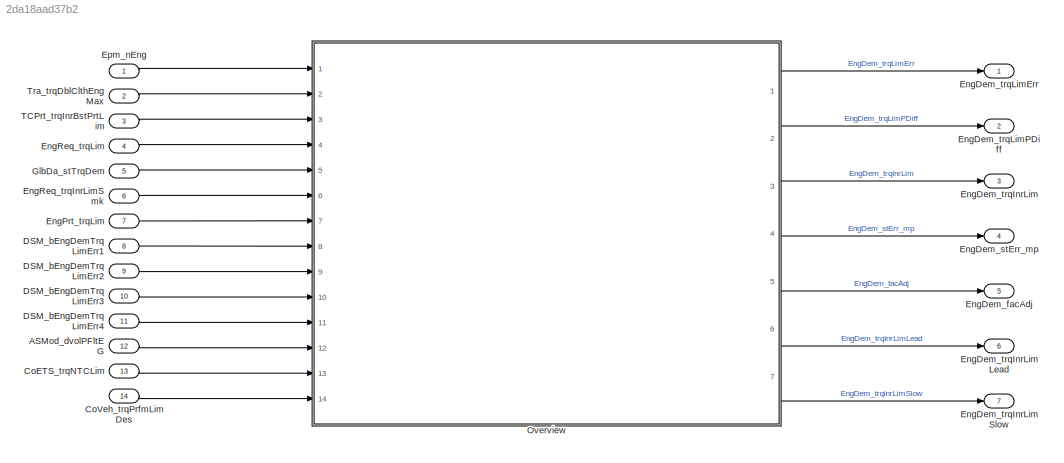
MODEL slx_2da18aad37b2
KIND model
CONFIG AbsTol = auto
CONFIG EnableMultiTasking = off
CONFIG FixedStep = 0.001
CONFIG MaxStep = auto
CONFIG MinStep = auto
CONFIG RelTol = 1e-3
CONFIG SampleTimeConstraint = Unconstrained
CONFIG Solver = FixedStepDiscrete
CONFIG SolverName = FixedStepDiscrete
CONFIG StartTime = 0.0
CONFIG StopTime = Inf
WORKSPACE source: MAT-file member
WORKSPACE EngDem_TrqLimCoord_DT = 10
BLOCK [Inport] ASMod_dvolPFltEG
  Description = Calculated exhaust-gas volume flow in the particulate filter
  IconDisplay = Port number
  OutDataTypeStr = vFlow_m3ph
  OutMax = 100
  OutMin = 0
  Port = 12
  PortDimensions = [1 1]
  Unit = m^3/h
BLOCK [Inport] CoETS_trqNTCLim
  Description = NTC torque limitation (0 in braking, ramped to max in braked to fired
  IconDisplay = Port number
  OutDataTypeStr = Torq
  OutMax = 1000
  OutMin = 0
  Port = 13
  PortDimensions = [1 1]
  Unit = Nm
BLOCK [Inport] CoVeh_trqPrfmLimDes
  Description = Torque limitation from performence limiter
  IconDisplay = Port number
  OutDataTypeStr = Torq
  OutMax = 3276.7
  OutMin = -3000
  Port = 14
  PortDimensions = [1 1]
  Unit = Nm
BLOCK [Inport] DSM_bEngDemTrqLimErr1
  Description = FId for Engine demand Torque Limitation due to System error
  IconDisplay = Port number
  OutDataTypeStr = boolean
  OutMax = 1
  OutMin = 0
  Port = 8
  PortDimensions = [1 1]
BLOCK [Inport] DSM_bEngDemTrqLimErr2
  Description = FId for Engine demand Torque Limitation due to System error
  IconDisplay = Port number
  OutDataTypeStr = boolean
  OutMax = 1
  OutMin = 0
  Port = 9
  PortDimensions = [1 1]
BLOCK [Inport] DSM_bEngDemTrqLimErr3
  Description = FId for Engine demand Torque Limitation due to System error
  IconDisplay = Port number
  OutDataTypeStr = boolean
  OutMax = 1
  OutMin = 0
  Port = 10
  PortDimensions = [1 1]
BLOCK [Inport] DSM_bEngDemTrqLimErr4
  Description = FId for Engine demand Torque Limitation due to System error
  IconDisplay = Port number
  OutDataTypeStr = boolean
  OutMax = 1
  OutMin = 0
  Port = 11
  PortDimensions = [1 1]
BLOCK [Outport] EngDem_facAdj
  IconDisplay = Port number
  Port = 5
BLOCK [Outport] EngDem_stErr_mp
  IconDisplay = Port number
  Port = 4
BLOCK [Outport] EngDem_trqInrLim
  IconDisplay = Port number
  Port = 3
BLOCK [Outport] EngDem_trqInrLimLead
  IconDisplay = Port number
  Port = 6
BLOCK [Outport] EngDem_trqInrLimSlow
  IconDisplay = Port number
  Port = 7
BLOCK [Outport] EngDem_trqLimErr
  IconDisplay = Port number
BLOCK [Outport] EngDem_trqLimPDiff
  IconDisplay = Port number
  Port = 2
BLOCK [Inport] EngPrt_trqLim
  Description = Limitation torque for engine mechanic protection by torque limitation (as inner engine torque)
  IconDisplay = Port number
  OutDataTypeStr = Torq
  OutMax = 3276.7
  OutMin = -3276.8
  Port = 7
  PortDimensions = [1 1]
  Unit = Nm
BLOCK [Inport] EngReq_trqInrLimSmk
  Description = Limiting torque smoke limit
  IconDisplay = Port number
  OutDataTypeStr = Torq
  OutMax = 3276.7
  OutMin = -3276.8
  Port = 6
  PortDimensions = [1 1]
  Unit = Nm
BLOCK [Inport] EngReq_trqLim
  Description = Resulting limiting torque from engine specifications
  IconDisplay = Port number
  OutDataTypeStr = Torq
  OutMax = 3276.7
  OutMin = -3276.8
  Port = 4
  PortDimensions = [1 1]
  Unit = Nm
BLOCK [Inport] Epm_nEng
  Description = Engine speed
  IconDisplay = Port number
  OutDataTypeStr = ERPM
  OutMax = 6000
  OutMin = 0
  PortDimensions = [1 1]
  Unit = rpm
BLOCK [Inport] GlbDa_stTrqDem
  Description = contains highest prior function with torque demand
  IconDisplay = Port number
  OutDataTypeStr = State4
  OutMax = 4294967295
  OutMin = 0
  Port = 5
  PortDimensions = [1 1]
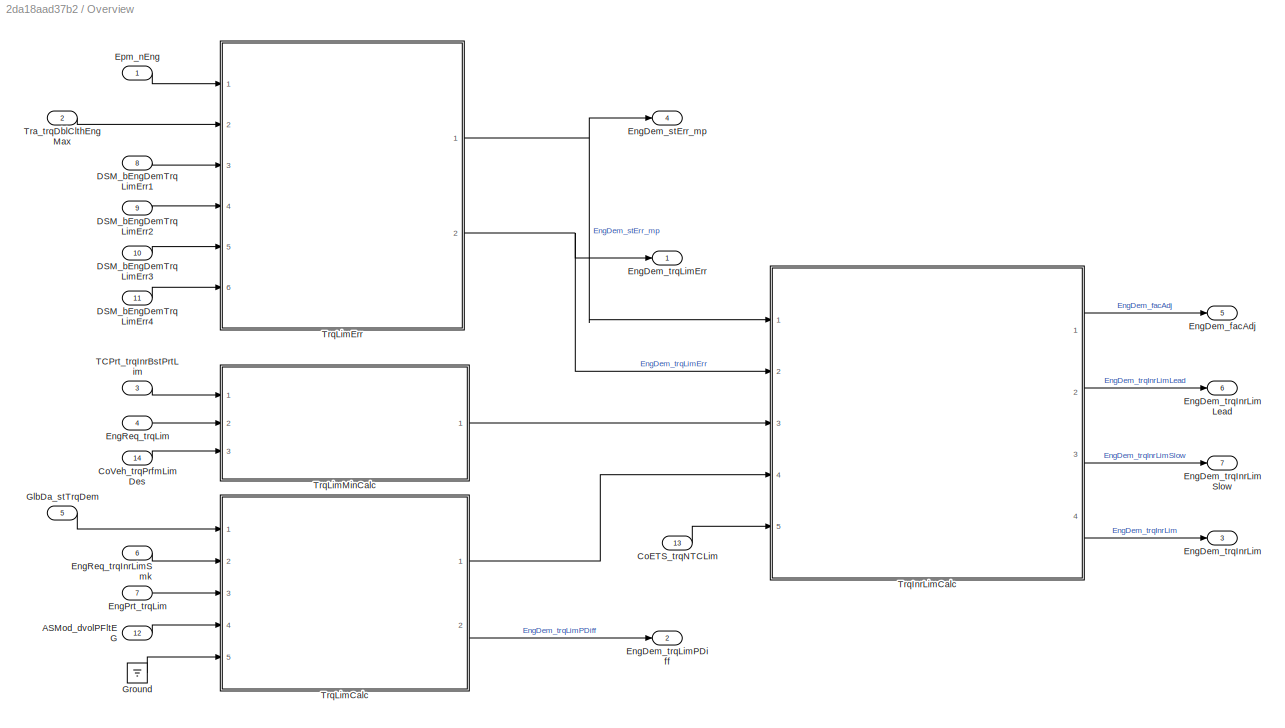
BLOCK [SubSystem] Overview
  Ports = [14, 7]
  RequestExecContextInheritance = off
BLOCK [Inport] Overview/ASMod_dvolPFltEG
  Description = Calculated exhaust-gas volume flow in the particulate filter
  IconDisplay = Port number
  OutMax = 100
  OutMin = 0
  Port = 12
  Tag = m^3/h
BLOCK [Inport] Overview/CoETS_trqNTCLim
  Description = NTC torque limitation (0 in braking, ramped to max in braked to fired
  IconDisplay = Port number
  OutMax = 1000
  OutMin = 0
  Port = 13
  Tag = Nm
BLOCK [Inport] Overview/CoVeh_trqPrfmLimDes
  Description = Torque limitation from performence limiter
  IconDisplay = Port number
  OutMax = 3276.7
  OutMin = -3000
  Port = 14
  Tag = Nm
BLOCK [Inport] Overview/DSM_bEngDemTrqLimErr1
  Description = FId for Engine demand Torque Limitation due to System error
  IconDisplay = Port number
  OutDataTypeStr = boolean
  OutMax = 1
  OutMin = 0
  Port = 8
BLOCK [Inport] Overview/DSM_bEngDemTrqLimErr2
  Description = FId for Engine demand Torque Limitation due to System error
  IconDisplay = Port number
  OutDataTypeStr = boolean
  OutMax = 1
  OutMin = 0
  Port = 9
BLOCK [Inport] Overview/DSM_bEngDemTrqLimErr3
  Description = FId for Engine demand Torque Limitation due to System error
  IconDisplay = Port number
  OutDataTypeStr = boolean
  OutMax = 1
  OutMin = 0
  Port = 10
BLOCK [Inport] Overview/DSM_bEngDemTrqLimErr4
  Description = FId for Engine demand Torque Limitation due to System error
  IconDisplay = Port number
  OutDataTypeStr = boolean
  OutMax = 1
  OutMin = 0
  Port = 11
BLOCK [Outport] Overview/EngDem_facAdj
  Description = EEPROM adjustment value for correction of the limiting torque
  IconDisplay = Port number
  OutMax = 10
  OutMin = -10
  Port = 5
BLOCK [Outport] Overview/EngDem_stErr_mp
  Description = Status of the limitation FIDs
  IconDisplay = Port number
  OutDataTypeStr = boolean
  OutMax = 1
  OutMin = 0
  Port = 4
BLOCK [Outport] Overview/EngDem_trqInrLim
  Description = Resulting limiting torque (inner engine torque)
  IconDisplay = Port number
  OutMax = 3276.7
  OutMin = -3276.8
  Port = 3
  Tag = Nm
BLOCK [Outport] Overview/EngDem_trqInrLimLead
  Description = inner engine limted lead torque
  IconDisplay = Port number
  OutMax = 3276.7
  OutMin = -3276.8
  Port = 6
  Tag = Nm
BLOCK [Outport] Overview/EngDem_trqInrLimSlow
  Description = inner engine limted torque for Slow Path
  IconDisplay = Port number
  OutMax = 3276.7
  OutMin = -3276.8
  Port = 7
  Tag = Nm
BLOCK [Outport] Overview/EngDem_trqLimErr
  Description = Substitute limiting torque in the event of an error
  IconDisplay = Port number
  OutMax = 3276.7
  OutMin = -3276.8
  Tag = Nm
BLOCK [Outport] Overview/EngDem_trqLimPDiff
  Description = Limiting torque due to exhaust gas back-pressure
  IconDisplay = Port number
  OutMax = 3276.7
  OutMin = -3276.8
  Port = 2
  Tag = Nm
BLOCK [Inport] Overview/EngPrt_trqLim
  Description = Limitation torque for engine mechanic protection by torque limitation (as inner engine torque)
  IconDisplay = Port number
  OutMax = 3276.7
  OutMin = -3276.8
  Port = 7
  Tag = Nm
BLOCK [Inport] Overview/EngReq_trqInrLimSmk
  Description = Limiting torque smoke limit
  IconDisplay = Port number
  OutMax = 3276.7
  OutMin = -3276.8
  Port = 6
  Tag = Nm
BLOCK [Inport] Overview/EngReq_trqLim
  Description = Resulting limiting torque from engine specifications
  IconDisplay = Port number
  OutMax = 3276.7
  OutMin = -3276.8
  Port = 4
  Tag = Nm
BLOCK [Inport] Overview/Epm_nEng
  Description = Engine speed
  IconDisplay = Port number
  OutMax = 6000
  OutMin = 0
  Tag = rpm
BLOCK [Inport] Overview/GlbDa_stTrqDem
  Description = contains highest prior function with torque demand
  IconDisplay = Port number
  OutMax = 4294967295
  OutMin = 0
  Port = 5
BLOCK [Ground] Overview/Ground
BLOCK [Inport] Overview/TCPrt_trqInrBstPrtLim
  Description = Torque limitation from VGT Nm
  IconDisplay = Port number
  OutMax = 3276.7
  OutMin = -3276.8
  Port = 3
  Tag = Nm
BLOCK [Inport] Overview/Tra_trqDblClthEngMax
  Description = Application parameter for minimum torque of systemdegratation Nm
  IconDisplay = Port number
  OutMax = 3000
  OutMin = -3000
  Port = 2
  Tag = Nm
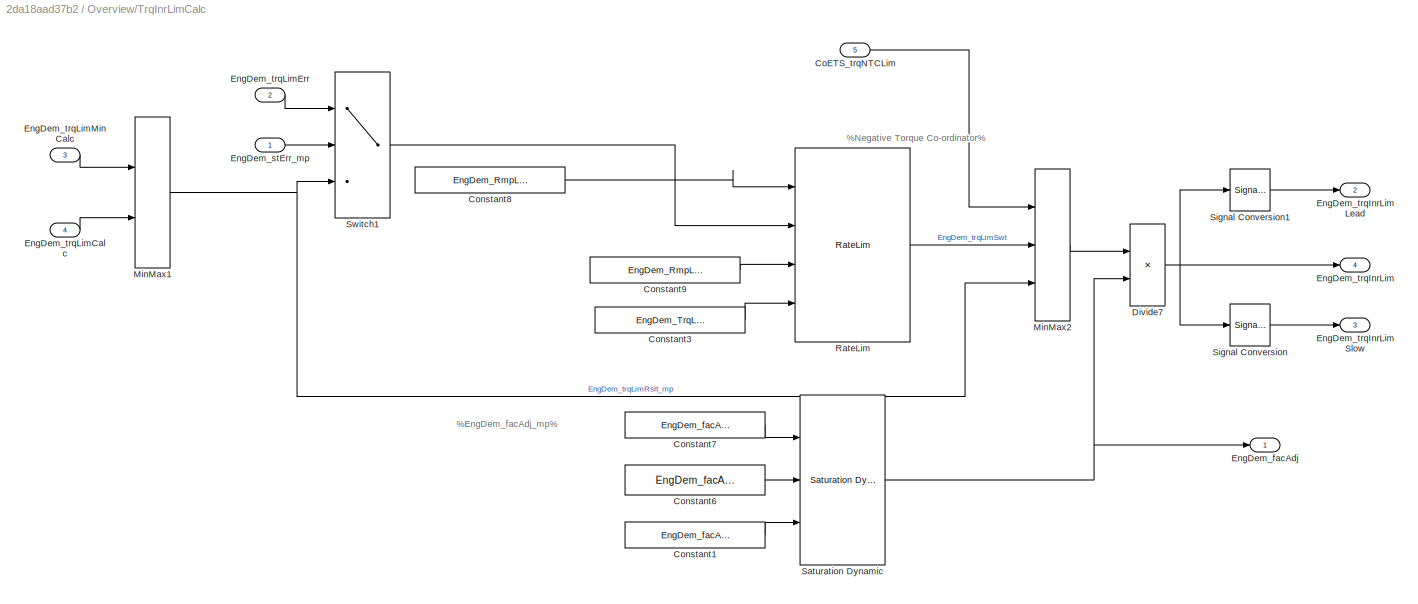
BLOCK [SubSystem] Overview/TrqInrLimCalc
  Ports = [5, 4]
  RequestExecContextInheritance = off
BLOCK [Inport] Overview/TrqInrLimCalc/CoETS_trqNTCLim
  Description = NTC torque limitation (0 in braking, ramped to max in braked to fired
  IconDisplay = Port number
  Port = 5
  Tag = Nm
BLOCK [Constant] Overview/TrqInrLimCalc/Constant1
  Value = EngDem_facAdj_C
BLOCK [Constant] Overview/TrqInrLimCalc/Constant3
  OutDataTypeStr = Inherit: Inherit via back propagation
  Value = EngDem_TrqLimCoord_DT
BLOCK [Constant] Overview/TrqInrLimCalc/Constant6
  Value = EngDem_facAdjMin_C
BLOCK [Constant] Overview/TrqInrLimCalc/Constant7
  Value = EngDem_facAdjMax_C
BLOCK [Constant] Overview/TrqInrLimCalc/Constant8
  Value = EngDem_RmpLimErrPos_C
BLOCK [Constant] Overview/TrqInrLimCalc/Constant9
  Value = EngDem_RmpLimErrNeg_C
BLOCK [Product] Overview/TrqInrLimCalc/Divide7
  InputSameDT = off
  Inputs = **
  OutDataTypeStr = Inherit: Inherit via back propagation
  Ports = [2, 1]
  RndMeth = Floor
  SaturateOnIntegerOverflow = off
BLOCK [Outport] Overview/TrqInrLimCalc/EngDem_facAdj
  IconDisplay = Port number
BLOCK [Inport] Overview/TrqInrLimCalc/EngDem_stErr_mp
  IconDisplay = Port number
BLOCK [Outport] Overview/TrqInrLimCalc/EngDem_trqInrLim
  IconDisplay = Port number
  Port = 4
BLOCK [Outport] Overview/TrqInrLimCalc/EngDem_trqInrLimLead
  IconDisplay = Port number
  Port = 2
BLOCK [Outport] Overview/TrqInrLimCalc/EngDem_trqInrLimSlow
  IconDisplay = Port number
  Port = 3
BLOCK [Inport] Overview/TrqInrLimCalc/EngDem_trqLimCalc
  IconDisplay = Port number
  Port = 4
BLOCK [Inport] Overview/TrqInrLimCalc/EngDem_trqLimErr
  IconDisplay = Port number
  Port = 2
BLOCK [Inport] Overview/TrqInrLimCalc/EngDem_trqLimMinCalc
  IconDisplay = Port number
  Port = 3
BLOCK [MinMax] Overview/TrqInrLimCalc/MinMax1
  Inputs = 2
  Ports = [2, 1]
  SaturateOnIntegerOverflow = off
BLOCK [MinMax] Overview/TrqInrLimCalc/MinMax2
  Inputs = 3
  Ports = [3, 1]
  SaturateOnIntegerOverflow = off
BLOCK [Reference] Overview/TrqInrLimCalc/RateLim  REF=sllib/RateLim  (lib defined in slx_2b0aa6d284ff)
  Ports = [4, 1]
  SourceBlock = sllib/RateLim
  SourceProductName = sllib
  SourceType = RateLim
BLOCK [Reference] Overview/TrqInrLimCalc/Saturation Dynamic  REF=simulink/Discontinuities/Saturation
Dynamic
  Ports = [3, 1]
  SourceBlock = simulink/Discontinuities/Saturation\nDynamic
  SourceProductBaseCode = SL
  SourceProductName = Simulink
  SourceType = Saturation Dynamic
BLOCK [SignalConversion] Overview/TrqInrLimCalc/Signal Conversion
  OverrideOpt = off
BLOCK [SignalConversion] Overview/TrqInrLimCalc/Signal Conversion1
  OverrideOpt = off
BLOCK [Switch] Overview/TrqInrLimCalc/Switch1
  Criteria = u2 ~= 0
  SaturateOnIntegerOverflow = off
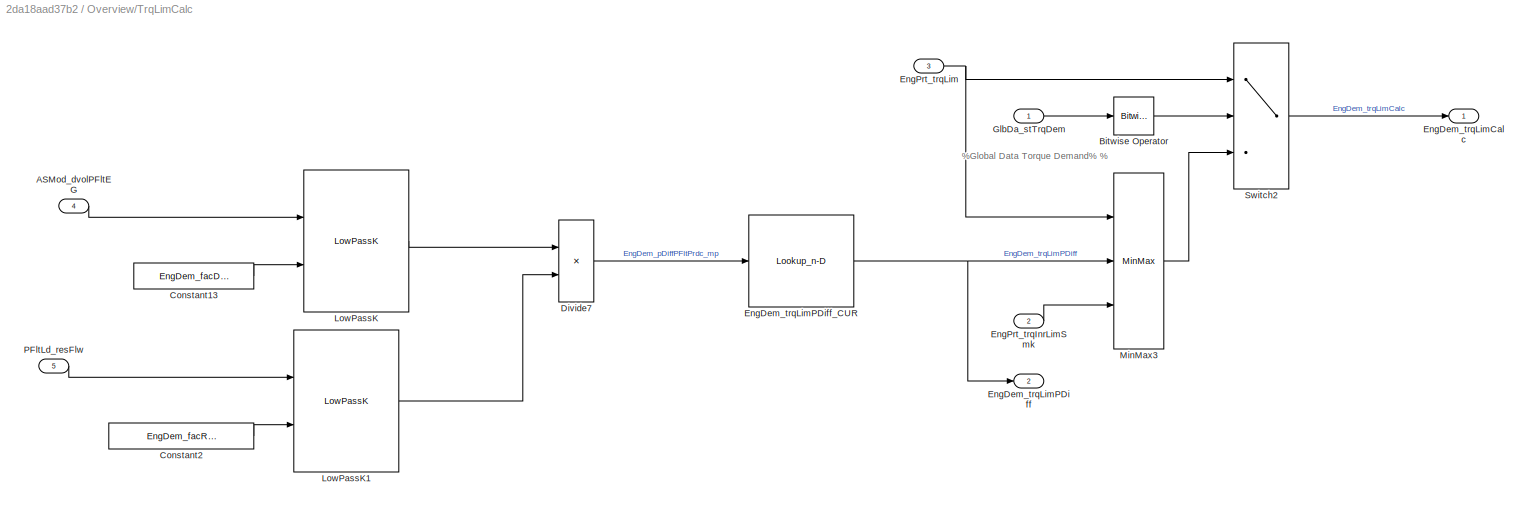
BLOCK [SubSystem] Overview/TrqLimCalc
  Ports = [5, 2]
  RTWFcnName = TrqLimCalc_Co
  RTWFcnNameOpts = User specified
  RTWFileName = TrqLimCalc
  RTWFileNameOpts = User specified
  RTWSystemCode = Nonreusable function
  RequestExecContextInheritance = off
BLOCK [Inport] Overview/TrqLimCalc/ASMod_dvolPFltEG
  Description = Calculated exhaust-gas volume flow in the particulate filter
  IconDisplay = Port number
  Port = 4
  Tag = m^2/h
BLOCK [Reference] Overview/TrqLimCalc/Bitwise Operator  REF=simulink/Logic and Bit
Operations/Bitwise
Operator
  Ports = [1, 1]
  SourceBlock = simulink/Logic and Bit\nOperations/Bitwise\nOperator
  SourceProductBaseCode = SL
  SourceProductName = Simulink
  SourceType = Bitwise Operator
BLOCK [Constant] Overview/TrqLimCalc/Constant13
  Value = EngDem_facDvolPT1_C
BLOCK [Constant] Overview/TrqLimCalc/Constant2
  Value = EngDem_facResFlowPT1_C
BLOCK [Product] Overview/TrqLimCalc/Divide7
  InputSameDT = off
  Inputs = **
  OutDataTypeStr = Inherit: Inherit via back propagation
  Ports = [2, 1]
  RndMeth = Floor
  SaturateOnIntegerOverflow = off
BLOCK [Outport] Overview/TrqLimCalc/EngDem_trqLimCalc
  IconDisplay = Port number
BLOCK [Outport] Overview/TrqLimCalc/EngDem_trqLimPDiff
  IconDisplay = Port number
  Port = 2
BLOCK [Lookup_n-D] Overview/TrqLimCalc/EngDem_trqLimPDiff_CUR
  BeginIndexSearchUsingPreviousIndexResult = on
  BreakpointsForDimension1 = EngDem_trqLimPDiff_CURX
  BreakpointsForDimension2 = CEngDsT_tTransf_CURX
  DialogController = Simulink.DDGSource
  ExtrapMethod = Clip
  IndexSearchMethod = Linear search
  InputSameDT = off
  InternalRulePriority = Speed
  NumberOfTableDimensions = 1
  OutDataTypeStr = Inherit: Inherit via back propagation
  Ports = [1, 1]
  SaturateOnIntegerOverflow = on
  Table = EngDem_trqLimPDiff_CUR
  UseLastTableValue = on
BLOCK [Inport] Overview/TrqLimCalc/EngPrt_trqInrLimSmk
  IconDisplay = Port number
  Port = 2
BLOCK [Inport] Overview/TrqLimCalc/EngPrt_trqLim
  IconDisplay = Port number
  Port = 3
BLOCK [Inport] Overview/TrqLimCalc/GlbDa_stTrqDem
  IconDisplay = Port number
BLOCK [Reference] Overview/TrqLimCalc/LowPassK  REF=sllib/LowPassK  (lib defined in slx_2b0aa6d284ff)
  Ports = [2, 1]
  SourceBlock = sllib/LowPassK
  SourceProductName = sllib
  SourceType = LowPassK
BLOCK [Reference] Overview/TrqLimCalc/LowPassK1  REF=sllib/LowPassK  (lib defined in slx_2b0aa6d284ff)
  Ports = [2, 1]
  SourceBlock = sllib/LowPassK
  SourceProductName = sllib
  SourceType = LowPassK
BLOCK [MinMax] Overview/TrqLimCalc/MinMax3
  Inputs = 3
  Ports = [3, 1]
  SaturateOnIntegerOverflow = off
BLOCK [Inport] Overview/TrqLimCalc/PFltLd_resFlw
  Description = Flow resistance of the particulate filter
  IconDisplay = Port number
  Port = 5
  Tag = kPa/(m^2/h)
BLOCK [Switch] Overview/TrqLimCalc/Switch2
  Criteria = u2 ~= 0
  SaturateOnIntegerOverflow = off
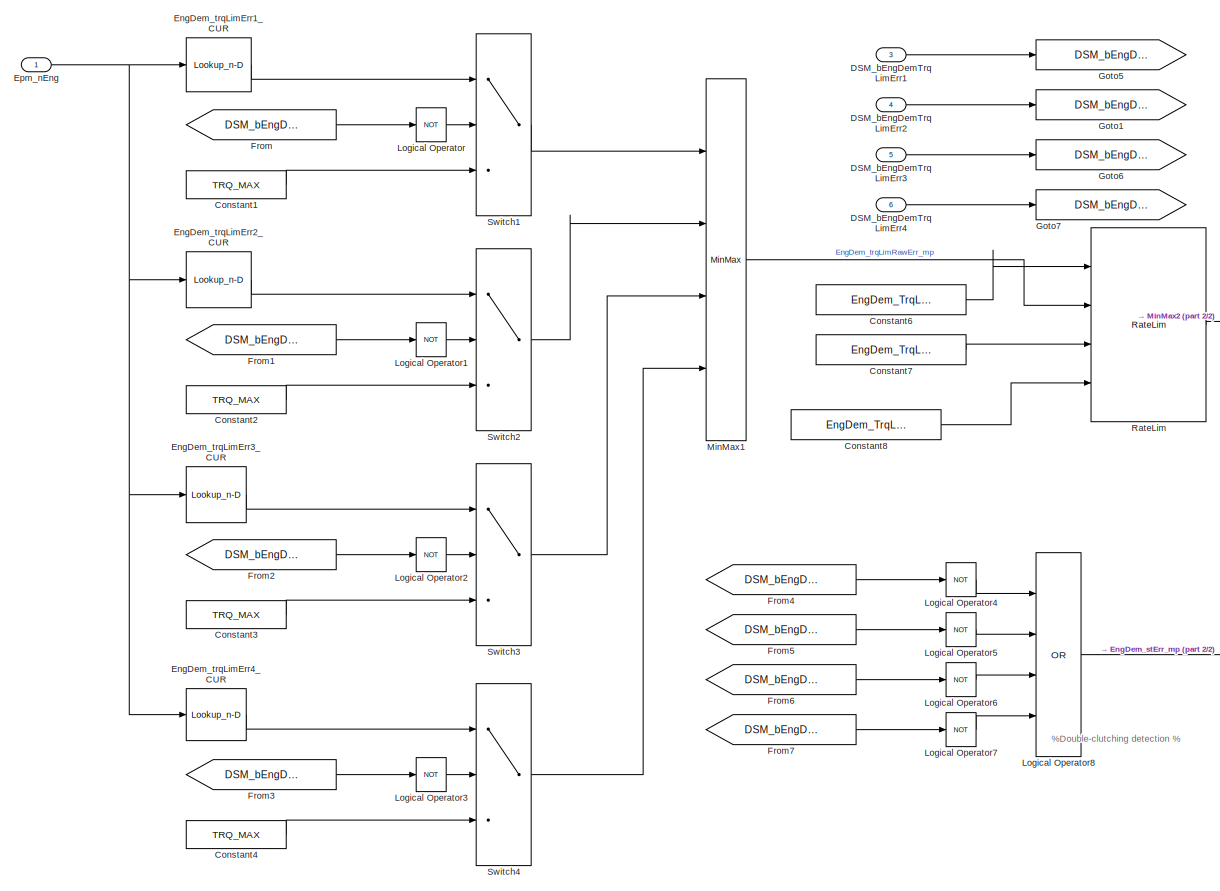
[diagram: Overview/TrqLimErr - part 1/2, most of the canvas]
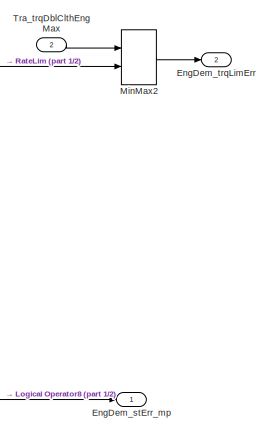
[diagram: Overview/TrqLimErr - part 2/2, middle right region]
BLOCK [SubSystem] Overview/TrqLimErr
  Ports = [6, 2]
  RTWFcnName = TrqLimErr_Co
  RTWFcnNameOpts = User specified
  RTWFileName = TrqLimErr
  RTWFileNameOpts = User specified
  RTWSystemCode = Nonreusable function
  RequestExecContextInheritance = off
BLOCK [Constant] Overview/TrqLimErr/Constant1
  Value = TRQ_MAX
BLOCK [Constant] Overview/TrqLimErr/Constant2
  Value = TRQ_MAX
BLOCK [Constant] Overview/TrqLimErr/Constant3
  Value = TRQ_MAX
BLOCK [Constant] Overview/TrqLimErr/Constant4
  Value = TRQ_MAX
BLOCK [Constant] Overview/TrqLimErr/Constant6
  Value = EngDem_TrqLimErrRmpPos_C
BLOCK [Constant] Overview/TrqLimErr/Constant7
  Value = EngDem_TrqLimErrRmpNeg_C
BLOCK [Constant] Overview/TrqLimErr/Constant8
  OutDataTypeStr = Inherit: Inherit via back propagation
  Value = EngDem_TrqLimCoord_DT
BLOCK [Inport] Overview/TrqLimErr/DSM_bEngDemTrqLimErr1
  Description = status of FId_EngDemTrqLimErr1
  IconDisplay = Port number
  OutDataTypeStr = boolean
  OutMax = 1
  OutMin = 0
  Port = 3
BLOCK [Inport] Overview/TrqLimErr/DSM_bEngDemTrqLimErr2
  Description = status of FId_EngDemTrqLimErr2
  IconDisplay = Port number
  OutDataTypeStr = boolean
  OutMax = 1
  OutMin = 0
  Port = 4
BLOCK [Inport] Overview/TrqLimErr/DSM_bEngDemTrqLimErr3
  Description = status of FId_EngDemTrqLimErr3
  IconDisplay = Port number
  OutDataTypeStr = boolean
  OutMax = 1
  OutMin = 0
  Port = 5
BLOCK [Inport] Overview/TrqLimErr/DSM_bEngDemTrqLimErr4
  Description = status of FId_EngDemTrqLimErr4
  IconDisplay = Port number
  OutDataTypeStr = boolean
  OutMax = 1
  OutMin = 0
  Port = 6
BLOCK [Outport] Overview/TrqLimErr/EngDem_stErr_mp
  IconDisplay = Port number
BLOCK [Outport] Overview/TrqLimErr/EngDem_trqLimErr
  IconDisplay = Port number
  Port = 2
BLOCK [Lookup_n-D] Overview/TrqLimErr/EngDem_trqLimErr1_CUR
  BeginIndexSearchUsingPreviousIndexResult = on
  BreakpointsForDimension1 = EngDem_trqLimErr1_CURX
  BreakpointsForDimension2 = CEngDsT_tTransf_CURX
  DialogController = Simulink.DDGSource
  ExtrapMethod = Clip
  IndexSearchMethod = Linear search
  InputSameDT = off
  InternalRulePriority = Speed
  NumberOfTableDimensions = 1
  OutDataTypeStr = Inherit: Inherit via back propagation
  Ports = [1, 1]
  SaturateOnIntegerOverflow = on
  Table = EngDem_trqLimErr1_CUR
  UseLastTableValue = on
BLOCK [Lookup_n-D] Overview/TrqLimErr/EngDem_trqLimErr2_CUR
  BeginIndexSearchUsingPreviousIndexResult = on
  BreakpointsForDimension1 = EngDem_trqLimErr2_CURX
  BreakpointsForDimension2 = CEngDsT_tTransf_CURX
  DialogController = Simulink.DDGSource
  ExtrapMethod = Clip
  IndexSearchMethod = Linear search
  InputSameDT = off
  InternalRulePriority = Speed
  NumberOfTableDimensions = 1
  OutDataTypeStr = Inherit: Inherit via back propagation
  Ports = [1, 1]
  SaturateOnIntegerOverflow = on
  Table = EngDem_trqLimErr2_CUR
  UseLastTableValue = on
BLOCK [Lookup_n-D] Overview/TrqLimErr/EngDem_trqLimErr3_CUR
  BeginIndexSearchUsingPreviousIndexResult = on
  BreakpointsForDimension1 = EngDem_trqLimErr3_CURX
  BreakpointsForDimension2 = CEngDsT_tTransf_CURX
  DialogController = Simulink.DDGSource
  ExtrapMethod = Clip
  IndexSearchMethod = Linear search
  InputSameDT = off
  InternalRulePriority = Speed
  NumberOfTableDimensions = 1
  OutDataTypeStr = Inherit: Inherit via back propagation
  Ports = [1, 1]
  SaturateOnIntegerOverflow = on
  Table = EngDem_trqLimErr3_CUR
  UseLastTableValue = on
BLOCK [Lookup_n-D] Overview/TrqLimErr/EngDem_trqLimErr4_CUR
  BeginIndexSearchUsingPreviousIndexResult = on
  BreakpointsForDimension1 = EngDem_trqLimErr4_CURX
  BreakpointsForDimension2 = CEngDsT_tTransf_CURX
  DialogController = Simulink.DDGSource
  ExtrapMethod = Clip
  IndexSearchMethod = Linear search
  InputSameDT = off
  InternalRulePriority = Speed
  NumberOfTableDimensions = 1
  OutDataTypeStr = Inherit: Inherit via back propagation
  Ports = [1, 1]
  SaturateOnIntegerOverflow = on
  Table = EngDem_trqLimErr4_CUR
  UseLastTableValue = on
BLOCK [Inport] Overview/TrqLimErr/Epm_nEng
  Description = Engine speed
  IconDisplay = Port number
BLOCK [From] Overview/TrqLimErr/From
  GotoTag = DSM_bEngDemTrqLimErr1
BLOCK [From] Overview/TrqLimErr/From1
  GotoTag = DSM_bEngDemTrqLimErr2
BLOCK [From] Overview/TrqLimErr/From2
  GotoTag = DSM_bEngDemTrqLimErr3
BLOCK [From] Overview/TrqLimErr/From3
  GotoTag = DSM_bEngDemTrqLimErr4
BLOCK [From] Overview/TrqLimErr/From4
  GotoTag = DSM_bEngDemTrqLimErr1
BLOCK [From] Overview/TrqLimErr/From5
  GotoTag = DSM_bEngDemTrqLimErr2
BLOCK [From] Overview/TrqLimErr/From6
  GotoTag = DSM_bEngDemTrqLimErr3
BLOCK [From] Overview/TrqLimErr/From7
  GotoTag = DSM_bEngDemTrqLimErr4
BLOCK [Goto] Overview/TrqLimErr/Goto1
  GotoTag = DSM_bEngDemTrqLimErr2
BLOCK [Goto] Overview/TrqLimErr/Goto5
  GotoTag = DSM_bEngDemTrqLimErr1
BLOCK [Goto] Overview/TrqLimErr/Goto6
  GotoTag = DSM_bEngDemTrqLimErr3
BLOCK [Goto] Overview/TrqLimErr/Goto7
  GotoTag = DSM_bEngDemTrqLimErr4
BLOCK [Logic] Overview/TrqLimErr/Logical Operator
  AllPortsSameDT = off
  Operator = NOT
  OutDataTypeStr = boolean
  Ports = [1, 1]
BLOCK [Logic] Overview/TrqLimErr/Logical Operator1
  AllPortsSameDT = off
  Operator = NOT
  OutDataTypeStr = boolean
  Ports = [1, 1]
BLOCK [Logic] Overview/TrqLimErr/Logical Operator2
  AllPortsSameDT = off
  Operator = NOT
  OutDataTypeStr = boolean
  Ports = [1, 1]
BLOCK [Logic] Overview/TrqLimErr/Logical Operator3
  AllPortsSameDT = off
  Operator = NOT
  OutDataTypeStr = boolean
  Ports = [1, 1]
BLOCK [Logic] Overview/TrqLimErr/Logical Operator4
  AllPortsSameDT = off
  Operator = NOT
  OutDataTypeStr = boolean
  Ports = [1, 1]
BLOCK [Logic] Overview/TrqLimErr/Logical Operator5
  AllPortsSameDT = off
  Operator = NOT
  OutDataTypeStr = boolean
  Ports = [1, 1]
BLOCK [Logic] Overview/TrqLimErr/Logical Operator6
  AllPortsSameDT = off
  Operator = NOT
  OutDataTypeStr = boolean
  Ports = [1, 1]
BLOCK [Logic] Overview/TrqLimErr/Logical Operator7
  AllPortsSameDT = off
  Operator = NOT
  OutDataTypeStr = boolean
  Ports = [1, 1]
BLOCK [Logic] Overview/TrqLimErr/Logical Operator8
  AllPortsSameDT = off
  Inputs = 4
  Operator = OR
  OutDataTypeStr = boolean
  Ports = [4, 1]
BLOCK [MinMax] Overview/TrqLimErr/MinMax1
  Inputs = 4
  Ports = [4, 1]
  SaturateOnIntegerOverflow = off
BLOCK [MinMax] Overview/TrqLimErr/MinMax2
  Function = max
  Inputs = 2
  Ports = [2, 1]
  SaturateOnIntegerOverflow = off
BLOCK [Reference] Overview/TrqLimErr/RateLim  REF=sllib/RateLim  (lib defined in slx_2b0aa6d284ff)
  Ports = [4, 1]
  SourceBlock = sllib/RateLim
  SourceProductName = sllib
  SourceType = RateLim
BLOCK [Switch] Overview/TrqLimErr/Switch1
  Criteria = u2 ~= 0
  SaturateOnIntegerOverflow = off
BLOCK [Switch] Overview/TrqLimErr/Switch2
  Criteria = u2 ~= 0
  SaturateOnIntegerOverflow = off
BLOCK [Switch] Overview/TrqLimErr/Switch3
  Criteria = u2 ~= 0
  SaturateOnIntegerOverflow = off
BLOCK [Switch] Overview/TrqLimErr/Switch4
  Criteria = u2 ~= 0
  SaturateOnIntegerOverflow = off
BLOCK [Inport] Overview/TrqLimErr/Tra_trqDblClthEngMax
  IconDisplay = Port number
  Port = 2
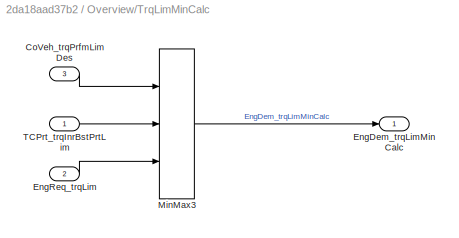
BLOCK [SubSystem] Overview/TrqLimMinCalc
  Ports = [3, 1]
  RTWFcnName = TrqLimMinCalc_Co
  RTWFcnNameOpts = User specified
  RTWFileName = TrqLimMinCalc
  RTWFileNameOpts = User specified
  RTWSystemCode = Nonreusable function
  RequestExecContextInheritance = off
BLOCK [Inport] Overview/TrqLimMinCalc/CoVeh_trqPrfmLimDes
  Description = Torque limitation from performence limiter
  IconDisplay = Port number
  Port = 3
  Tag = Nm
BLOCK [Outport] Overview/TrqLimMinCalc/EngDem_trqLimMinCalc
  IconDisplay = Port number
BLOCK [Inport] Overview/TrqLimMinCalc/EngReq_trqLim
  IconDisplay = Port number
  Port = 2
BLOCK [MinMax] Overview/TrqLimMinCalc/MinMax3
  Inputs = 3
  Ports = [3, 1]
  SaturateOnIntegerOverflow = off
BLOCK [Inport] Overview/TrqLimMinCalc/TCPrt_trqInrBstPrtLim
  IconDisplay = Port number
BLOCK [Inport] TCPrt_trqInrBstPrtLim
  Description = Torque limitation from VGT Nm
  IconDisplay = Port number
  OutDataTypeStr = Torq
  OutMax = 3276.7
  OutMin = -3276.8
  Port = 3
  PortDimensions = [1 1]
  Unit = Nm
BLOCK [Inport] Tra_trqDblClthEngMax
  Description = Application parameter for minimum torque of systemdegratation Nm
  IconDisplay = Port number
  OutDataTypeStr = Torq
  OutMax = 3000
  OutMin = -3000
  Port = 2
  PortDimensions = [1 1]
  Unit = Nm
ANNOTATION Overview/TrqInrLimCalc: %EngDem_facAdj_mp%
ANNOTATION Overview/TrqInrLimCalc: % Negative Torque Co-ordinator%
ANNOTATION Overview/TrqLimCalc: %Global Data Torque Demand% %
ANNOTATION Overview/TrqLimErr: %Double-clutching detection %
LINE ASMod_dvolPFltEG:1 -> Overview:12
LINE CoETS_trqNTCLim:1 -> Overview:13
LINE CoVeh_trqPrfmLimDes:1 -> Overview:14
LINE DSM_bEngDemTrqLimErr1:1 -> Overview:8
LINE DSM_bEngDemTrqLimErr2:1 -> Overview:9
LINE DSM_bEngDemTrqLimErr3:1 -> Overview:10
LINE DSM_bEngDemTrqLimErr4:1 -> Overview:11
LINE EngPrt_trqLim:1 -> Overview:7
LINE EngReq_trqInrLimSmk:1 -> Overview:6
LINE EngReq_trqLim:1 -> Overview:4
LINE Epm_nEng:1 -> Overview:1
LINE GlbDa_stTrqDem:1 -> Overview:5
LINE Overview/ASMod_dvolPFltEG:1 -> Overview/TrqLimCalc:4
LINE Overview/CoETS_trqNTCLim:1 -> Overview/TrqInrLimCalc:5
LINE Overview/CoVeh_trqPrfmLimDes:1 -> Overview/TrqLimMinCalc:3
LINE Overview/DSM_bEngDemTrqLimErr1:1 -> Overview/TrqLimErr:3
LINE Overview/DSM_bEngDemTrqLimErr2:1 -> Overview/TrqLimErr:4
LINE Overview/DSM_bEngDemTrqLimErr3:1 -> Overview/TrqLimErr:5
LINE Overview/DSM_bEngDemTrqLimErr4:1 -> Overview/TrqLimErr:6
LINE Overview/EngPrt_trqLim:1 -> Overview/TrqLimCalc:3
LINE Overview/EngReq_trqInrLimSmk:1 -> Overview/TrqLimCalc:2
LINE Overview/EngReq_trqLim:1 -> Overview/TrqLimMinCalc:2
LINE Overview/Epm_nEng:1 -> Overview/TrqLimErr:1
LINE Overview/GlbDa_stTrqDem:1 -> Overview/TrqLimCalc:1
LINE Overview/Ground:1 -> Overview/TrqLimCalc:5
LINE Overview/TCPrt_trqInrBstPrtLim:1 -> Overview/TrqLimMinCalc:1
LINE Overview/Tra_trqDblClthEngMax:1 -> Overview/TrqLimErr:2
LINE Overview/TrqInrLimCalc/CoETS_trqNTCLim:1 -> Overview/TrqInrLimCalc/MinMax2:1
LINE Overview/TrqInrLimCalc/Constant1:1 -> Overview/TrqInrLimCalc/Saturation Dynamic:3
LINE Overview/TrqInrLimCalc/Constant3:1 -> Overview/TrqInrLimCalc/RateLim:4
LINE Overview/TrqInrLimCalc/Constant6:1 -> Overview/TrqInrLimCalc/Saturation Dynamic:2
LINE Overview/TrqInrLimCalc/Constant7:1 -> Overview/TrqInrLimCalc/Saturation Dynamic:1
LINE Overview/TrqInrLimCalc/Constant8:1 -> Overview/TrqInrLimCalc/RateLim:1
LINE Overview/TrqInrLimCalc/Constant9:1 -> Overview/TrqInrLimCalc/RateLim:3
NET Overview/TrqInrLimCalc/Divide7:1 -> Overview/TrqInrLimCalc/EngDem_trqInrLim:1, Overview/TrqInrLimCalc/Signal Conversion1:1, Overview/TrqInrLimCalc/Signal Conversion:1
LINE Overview/TrqInrLimCalc/EngDem_stErr_mp:1 -> Overview/TrqInrLimCalc/Switch1:2
LINE Overview/TrqInrLimCalc/EngDem_trqLimCalc:1 -> Overview/TrqInrLimCalc/MinMax1:2
LINE Overview/TrqInrLimCalc/EngDem_trqLimErr:1 -> Overview/TrqInrLimCalc/Switch1:1
LINE Overview/TrqInrLimCalc/EngDem_trqLimMinCalc:1 -> Overview/TrqInrLimCalc/MinMax1:1
NET Overview/TrqInrLimCalc/MinMax1:1 -> Overview/TrqInrLimCalc/MinMax2:3, Overview/TrqInrLimCalc/Switch1:3
LINE Overview/TrqInrLimCalc/MinMax2:1 -> Overview/TrqInrLimCalc/Divide7:1
LINE Overview/TrqInrLimCalc/RateLim:1 -> Overview/TrqInrLimCalc/MinMax2:2
NET Overview/TrqInrLimCalc/Saturation Dynamic:1 -> Overview/TrqInrLimCalc/Divide7:2, Overview/TrqInrLimCalc/EngDem_facAdj:1
LINE Overview/TrqInrLimCalc/Signal Conversion1:1 -> Overview/TrqInrLimCalc/EngDem_trqInrLimLead:1
LINE Overview/TrqInrLimCalc/Signal Conversion:1 -> Overview/TrqInrLimCalc/EngDem_trqInrLimSlow:1
LINE Overview/TrqInrLimCalc/Switch1:1 -> Overview/TrqInrLimCalc/RateLim:2
LINE Overview/TrqInrLimCalc:1 -> Overview/EngDem_facAdj:1
LINE Overview/TrqInrLimCalc:2 -> Overview/EngDem_trqInrLimLead:1
LINE Overview/TrqInrLimCalc:3 -> Overview/EngDem_trqInrLimSlow:1
LINE Overview/TrqInrLimCalc:4 -> Overview/EngDem_trqInrLim:1
LINE Overview/TrqLimCalc/ASMod_dvolPFltEG:1 -> Overview/TrqLimCalc/LowPassK:1
LINE Overview/TrqLimCalc/Bitwise Operator:1 -> Overview/TrqLimCalc/Switch2:2
LINE Overview/TrqLimCalc/Constant13:1 -> Overview/TrqLimCalc/LowPassK:2
LINE Overview/TrqLimCalc/Constant2:1 -> Overview/TrqLimCalc/LowPassK1:2
LINE Overview/TrqLimCalc/Divide7:1 -> Overview/TrqLimCalc/EngDem_trqLimPDiff_CUR:1
NET Overview/TrqLimCalc/EngDem_trqLimPDiff_CUR:1 -> Overview/TrqLimCalc/EngDem_trqLimPDiff:1, Overview/TrqLimCalc/MinMax3:2
LINE Overview/TrqLimCalc/EngPrt_trqInrLimSmk:1 -> Overview/TrqLimCalc/MinMax3:3
NET Overview/TrqLimCalc/EngPrt_trqLim:1 -> Overview/TrqLimCalc/MinMax3:1, Overview/TrqLimCalc/Switch2:1
LINE Overview/TrqLimCalc/GlbDa_stTrqDem:1 -> Overview/TrqLimCalc/Bitwise Operator:1
LINE Overview/TrqLimCalc/LowPassK1:1 -> Overview/TrqLimCalc/Divide7:2
LINE Overview/TrqLimCalc/LowPassK:1 -> Overview/TrqLimCalc/Divide7:1
LINE Overview/TrqLimCalc/MinMax3:1 -> Overview/TrqLimCalc/Switch2:3
LINE Overview/TrqLimCalc/PFltLd_resFlw:1 -> Overview/TrqLimCalc/LowPassK1:1
LINE Overview/TrqLimCalc/Switch2:1 -> Overview/TrqLimCalc/EngDem_trqLimCalc:1
LINE Overview/TrqLimCalc:1 -> Overview/TrqInrLimCalc:4
LINE Overview/TrqLimCalc:2 -> Overview/EngDem_trqLimPDiff:1
LINE Overview/TrqLimErr/Constant1:1 -> Overview/TrqLimErr/Switch1:3
LINE Overview/TrqLimErr/Constant2:1 -> Overview/TrqLimErr/Switch2:3
LINE Overview/TrqLimErr/Constant3:1 -> Overview/TrqLimErr/Switch3:3
LINE Overview/TrqLimErr/Constant4:1 -> Overview/TrqLimErr/Switch4:3
LINE Overview/TrqLimErr/Constant6:1 -> Overview/TrqLimErr/RateLim:1
LINE Overview/TrqLimErr/Constant7:1 -> Overview/TrqLimErr/RateLim:3
LINE Overview/TrqLimErr/Constant8:1 -> Overview/TrqLimErr/RateLim:4
LINE Overview/TrqLimErr/DSM_bEngDemTrqLimErr1:1 -> Overview/TrqLimErr/Goto5:1
LINE Overview/TrqLimErr/DSM_bEngDemTrqLimErr2:1 -> Overview/TrqLimErr/Goto1:1
LINE Overview/TrqLimErr/DSM_bEngDemTrqLimErr3:1 -> Overview/TrqLimErr/Goto6:1
LINE Overview/TrqLimErr/DSM_bEngDemTrqLimErr4:1 -> Overview/TrqLimErr/Goto7:1
LINE Overview/TrqLimErr/EngDem_trqLimErr1_CUR:1 -> Overview/TrqLimErr/Switch1:1
LINE Overview/TrqLimErr/EngDem_trqLimErr2_CUR:1 -> Overview/TrqLimErr/Switch2:1
LINE Overview/TrqLimErr/EngDem_trqLimErr3_CUR:1 -> Overview/TrqLimErr/Switch3:1
LINE Overview/TrqLimErr/EngDem_trqLimErr4_CUR:1 -> Overview/TrqLimErr/Switch4:1
NET Overview/TrqLimErr/Epm_nEng:1 -> Overview/TrqLimErr/EngDem_trqLimErr1_CUR:1, Overview/TrqLimErr/EngDem_trqLimErr2_CUR:1, Overview/TrqLimErr/EngDem_trqLimErr3_CUR:1, Overview/TrqLimErr/EngDem_trqLimErr4_CUR:1
LINE Overview/TrqLimErr/From1:1 -> Overview/TrqLimErr/Logical Operator1:1
LINE Overview/TrqLimErr/From2:1 -> Overview/TrqLimErr/Logical Operator2:1
LINE Overview/TrqLimErr/From3:1 -> Overview/TrqLimErr/Logical Operator3:1
LINE Overview/TrqLimErr/From4:1 -> Overview/TrqLimErr/Logical Operator4:1
LINE Overview/TrqLimErr/From5:1 -> Overview/TrqLimErr/Logical Operator5:1
LINE Overview/TrqLimErr/From6:1 -> Overview/TrqLimErr/Logical Operator6:1
LINE Overview/TrqLimErr/From7:1 -> Overview/TrqLimErr/Logical Operator7:1
LINE Overview/TrqLimErr/From:1 -> Overview/TrqLimErr/Logical Operator:1
LINE Overview/TrqLimErr/Logical Operator1:1 -> Overview/TrqLimErr/Switch2:2
LINE Overview/TrqLimErr/Logical Operator2:1 -> Overview/TrqLimErr/Switch3:2
LINE Overview/TrqLimErr/Logical Operator3:1 -> Overview/TrqLimErr/Switch4:2
LINE Overview/TrqLimErr/Logical Operator4:1 -> Overview/TrqLimErr/Logical Operator8:1
LINE Overview/TrqLimErr/Logical Operator5:1 -> Overview/TrqLimErr/Logical Operator8:2
LINE Overview/TrqLimErr/Logical Operator6:1 -> Overview/TrqLimErr/Logical Operator8:3
LINE Overview/TrqLimErr/Logical Operator7:1 -> Overview/TrqLimErr/Logical Operator8:4
LINE Overview/TrqLimErr/Logical Operator8:1 -> Overview/TrqLimErr/EngDem_stErr_mp:1
LINE Overview/TrqLimErr/Logical Operator:1 -> Overview/TrqLimErr/Switch1:2
LINE Overview/TrqLimErr/MinMax1:1 -> Overview/TrqLimErr/RateLim:2
LINE Overview/TrqLimErr/MinMax2:1 -> Overview/TrqLimErr/EngDem_trqLimErr:1
LINE Overview/TrqLimErr/RateLim:1 -> Overview/TrqLimErr/MinMax2:2
LINE Overview/TrqLimErr/Switch1:1 -> Overview/TrqLimErr/MinMax1:1
LINE Overview/TrqLimErr/Switch2:1 -> Overview/TrqLimErr/MinMax1:2
LINE Overview/TrqLimErr/Switch3:1 -> Overview/TrqLimErr/MinMax1:3
LINE Overview/TrqLimErr/Switch4:1 -> Overview/TrqLimErr/MinMax1:4
LINE Overview/TrqLimErr/Tra_trqDblClthEngMax:1 -> Overview/TrqLimErr/MinMax2:1
NET Overview/TrqLimErr:1 -> Overview/EngDem_stErr_mp:1, Overview/TrqInrLimCalc:1
NET Overview/TrqLimErr:2 -> Overview/EngDem_trqLimErr:1, Overview/TrqInrLimCalc:2
LINE Overview/TrqLimMinCalc/CoVeh_trqPrfmLimDes:1 -> Overview/TrqLimMinCalc/MinMax3:1
LINE Overview/TrqLimMinCalc/EngReq_trqLim:1 -> Overview/TrqLimMinCalc/MinMax3:3
LINE Overview/TrqLimMinCalc/MinMax3:1 -> Overview/TrqLimMinCalc/EngDem_trqLimMinCalc:1
LINE Overview/TrqLimMinCalc/TCPrt_trqInrBstPrtLim:1 -> Overview/TrqLimMinCalc/MinMax3:2
LINE Overview/TrqLimMinCalc:1 -> Overview/TrqInrLimCalc:3
LINE Overview:1 -> EngDem_trqLimErr:1
LINE Overview:2 -> EngDem_trqLimPDiff:1
LINE Overview:3 -> EngDem_trqInrLim:1
LINE Overview:4 -> EngDem_stErr_mp:1
LINE Overview:5 -> EngDem_facAdj:1
LINE Overview:6 -> EngDem_trqInrLimLead:1
LINE Overview:7 -> EngDem_trqInrLimSlow:1
LINE TCPrt_trqInrBstPrtLim:1 -> Overview:3
LINE Tra_trqDblClthEngMax:1 -> Overview:2
note: NET lines group one-source signal fan-out (src -> all destinations, sorted); 1:1 wires keep LINE
